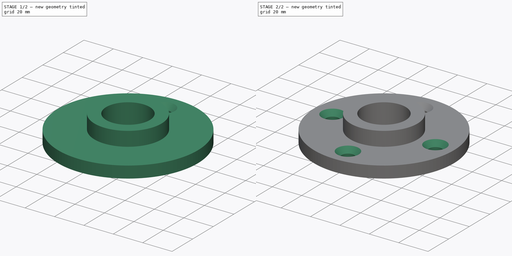
[diagram: build sequence overview — one tinted view per stage of 2, left to right]
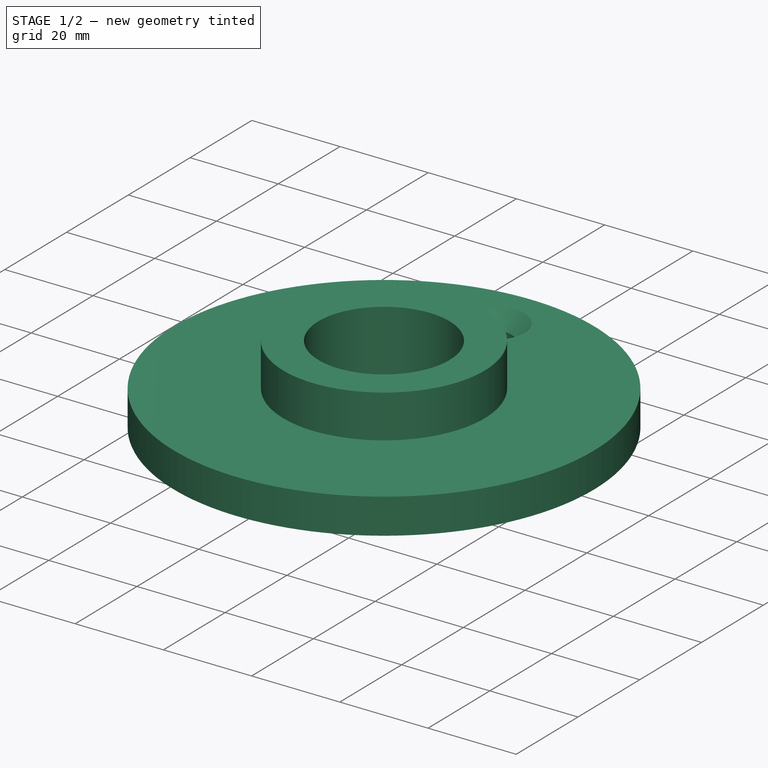
[diagram: stage 1 of 2 — iso view after this stage's code; geometry added in this stage tinted green]
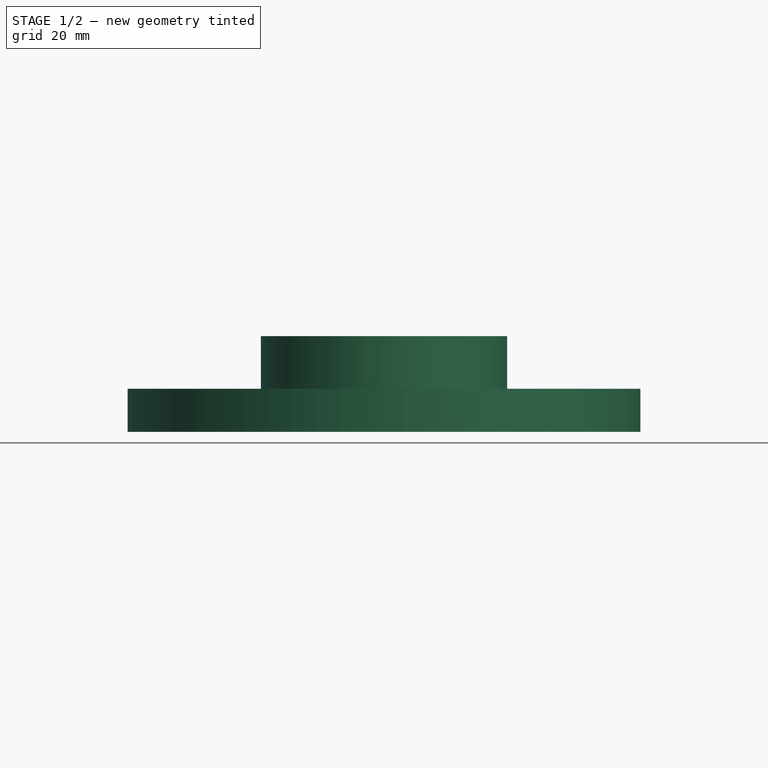
[diagram: stage 1 of 2 — front view after this stage's code; geometry added in this stage tinted green]
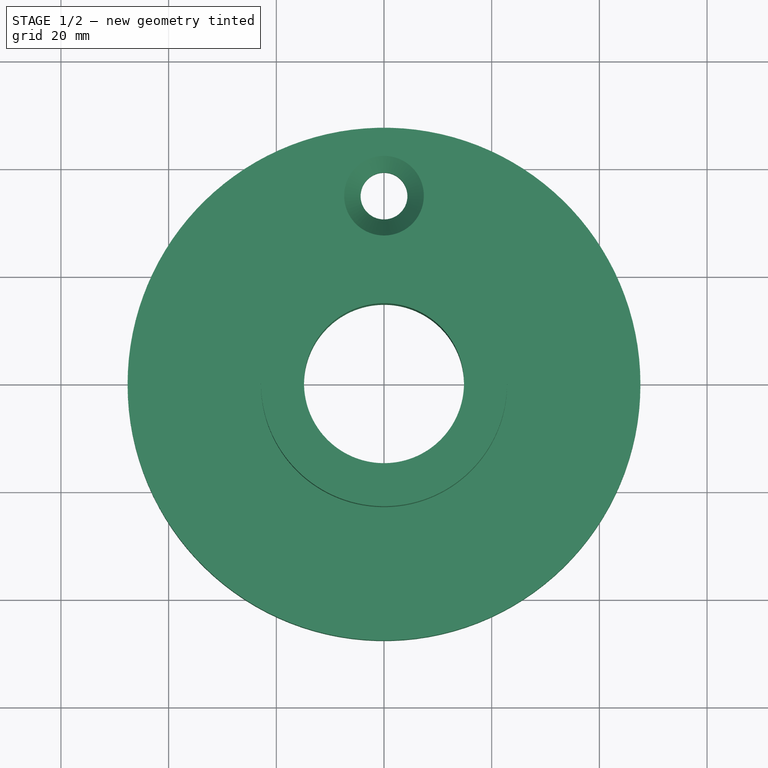
[diagram: stage 1 of 2 — top view after this stage's code; geometry added in this stage tinted green]
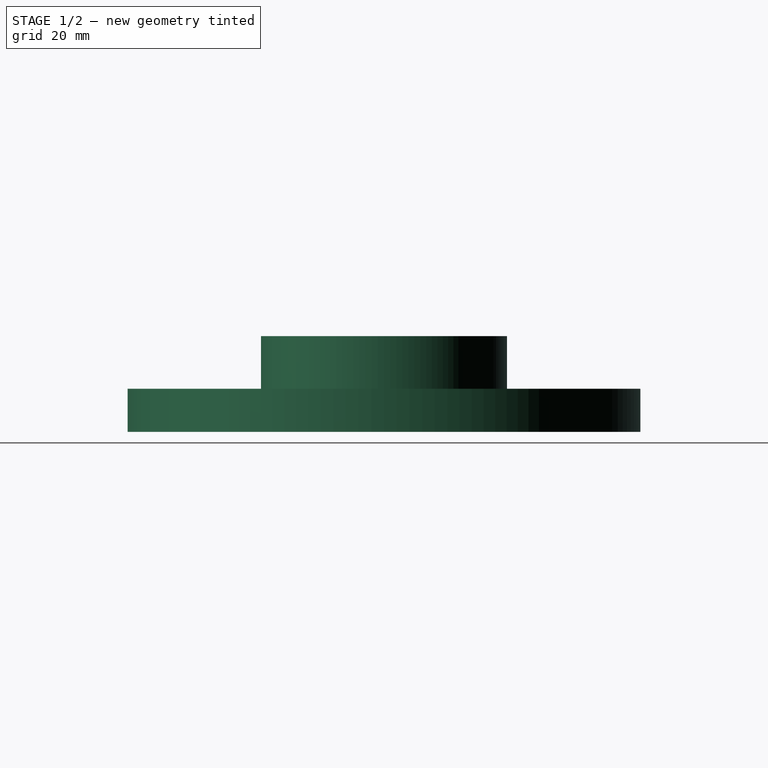
[diagram: stage 1 of 2 — right view after this stage's code; geometry added in this stage tinted green]
FCSTD DOCUMENT  (FreeCAD 0.20R29177 +426 (Git))
Label: PipeFloorFlange
License: All rights reserved
LicenseURL: http://en.wikipedia.org/wiki/All_rights_reserved
objects: Sketcher::SketchObject×2, PartDesign::Revolution×1, PartDesign::Hole×1, PartDesign::PolarPattern×1, PartDesign::CoordinateSystem×1, PartDesign::Body×1
note: 9 computed .brp shape members not serialized (recipe doc carries the construction recipe); baked Part::Feature solids carry a one-line shape summary decoded from their .brp

FEATURE [Sketcher::SketchObject] Sketch
  FullyConstrained = true
  MapMode = 5
  Placement = pos=(0,0,0) rot=(1,0,0;1.5708rad)
  Support = -> [XZ_Plane]
  sketch-geometry (6):
    g0: LineSegment StartX=14.86 StartY=0 StartZ=0 EndX=47.625 EndY=0 EndZ=0
    g1: LineSegment StartX=47.625 StartY=0 StartZ=0 EndX=47.625 EndY=8 EndZ=0
    g2: LineSegment StartX=47.625 StartY=8 StartZ=0 EndX=22.86 EndY=8 EndZ=0
    g3: LineSegment StartX=22.86 StartY=8 StartZ=0 EndX=22.86 EndY=17.78 EndZ=0
    g4: LineSegment StartX=22.86 StartY=17.78 StartZ=0 EndX=14.86 EndY=17.78 EndZ=0
    g5: LineSegment StartX=14.86 StartY=17.78 StartZ=0 EndX=14.86 EndY=0 EndZ=0
  constraints (18):
    c: PointOnObject(g0,g-1)
    c: Horizontal(g0)
    c: Coincident(g1,g0)
    c: Coincident(g2,g1)
    c: Horizontal(g2)
    c: Coincident(g3,g2)
    c: Vertical(g3)
    c: Coincident(g4,g3)
    c: Horizontal(g4)
    c: Vertical(g5)
    c: Coincident(g5,g4)
    c: Coincident(g5,g0)
    c: Vertical(g1)
    c: DistanceX(g-1,g3) = 22.86
    c: DistanceY(g1,g1) = 8  'Thickness'
    c: DistanceY(g5,g5) = 17.78
    c: DistanceX(g-1,g0) = 47.625
    c: DistanceX(g4,g4) = 8
FEATURE [PartDesign::Revolution] Revolution
  Angle = 360
  Axis = (0,-2e-16,1)
  Base = (0,0,0)
  Placement = pos=(0,0,0) rot=(1,0,0;1.5708rad)
  Profile = -> Sketch
  ReferenceAxis = -> Sketch [V_Axis]
  Reversed = true
FEATURE [Sketcher::SketchObject] Sketch001
  AttachmentOffset = pos=(0,0,8) rot=(0,0,1;0rad)
  FullyConstrained = true
  MapMode = 5
  Placement = pos=(0,0,8) rot=(0,0,1;0rad)
  Support = -> [XY_Plane]
  expr: .AttachmentOffset.Base.z = <<Sketch>>.Constraints.Thickness
  sketch-geometry (1):
    g0: Circle CenterX=0 CenterY=35 CenterZ=0 NormalX=0 NormalY=0 NormalZ=1 AngleXU=0 Radius=3
  constraints (3):
    c: PointOnObject(g0,g-2)
    c: DistanceY(g-1,g0) = 35
    c: Diameter(g0) = 6
FEATURE [PartDesign::Hole] Hole
  BaseFeature = -> Revolution
  CustomThreadClearance = 0
  Depth = 25
  DepthType = 0
  Diameter = 8.7
  DrillForDepth = false
  DrillPoint = 1
  DrillPointAngle = 118
  HoleCutCountersinkAngle = 82
  HoleCutCustomValues = false
  HoleCutDepth = 0
  HoleCutDiameter = 14.79
  HoleCutType = 2
  ModelThread = false
  Placement = pos=(0,0,0) rot=(1,0,0;1.5708rad)
  Profile = -> Sketch001
  Tapered = false
  TaperedAngle = 90
  ThreadClass = 0
  ThreadDepth = 25
  ThreadDepthType = 0
  ThreadDirection = 0
  ThreadFit = 0
  ThreadSize = 10
  ThreadType = 3
  Threaded = false
  UseCustomThreadClearance = false
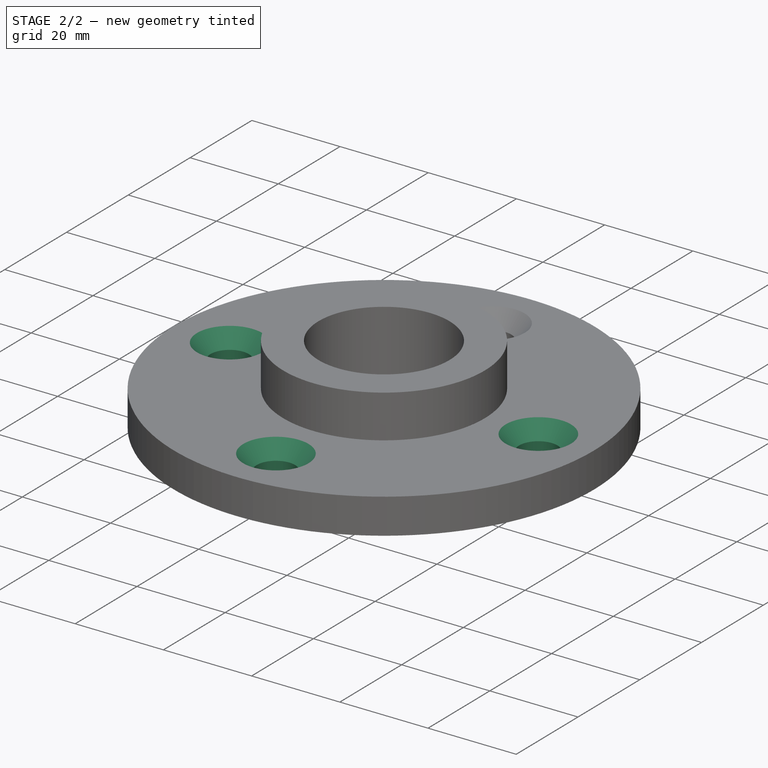
[diagram: stage 2 of 2 — iso view after this stage's code; geometry added in this stage tinted green]
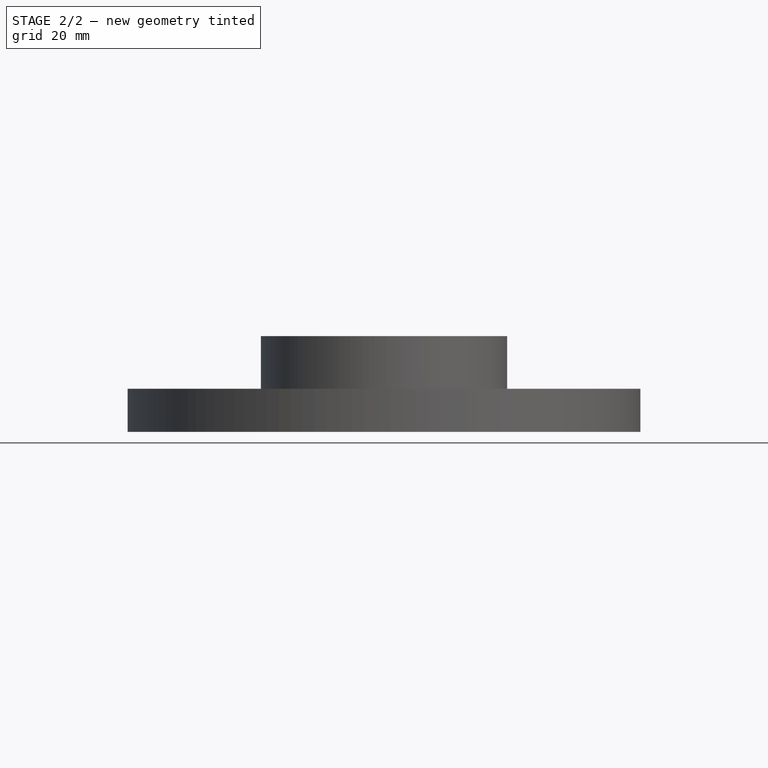
[diagram: stage 2 of 2 — front view after this stage's code; geometry added in this stage tinted green]
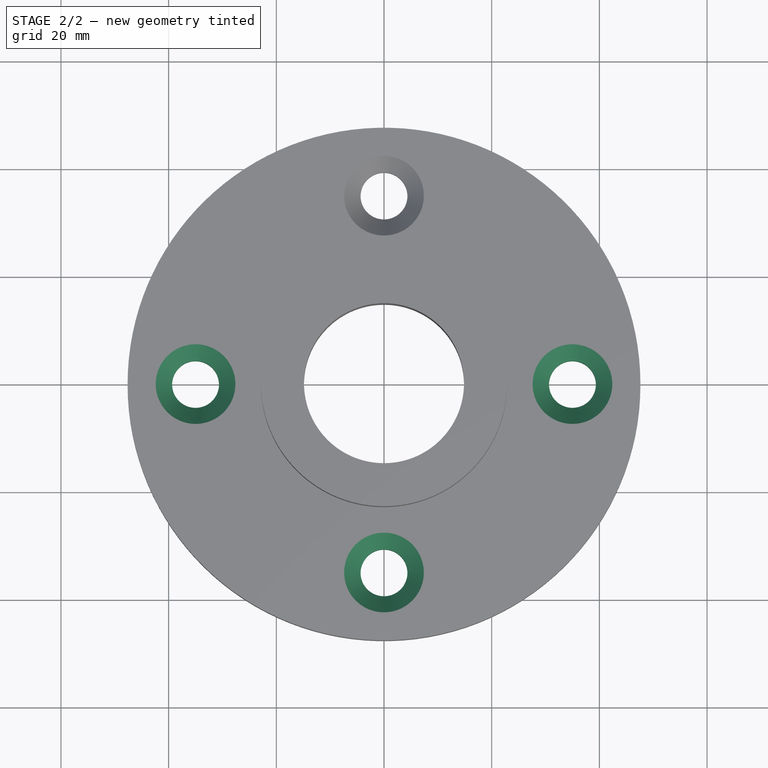
[diagram: stage 2 of 2 — top view after this stage's code; geometry added in this stage tinted green]
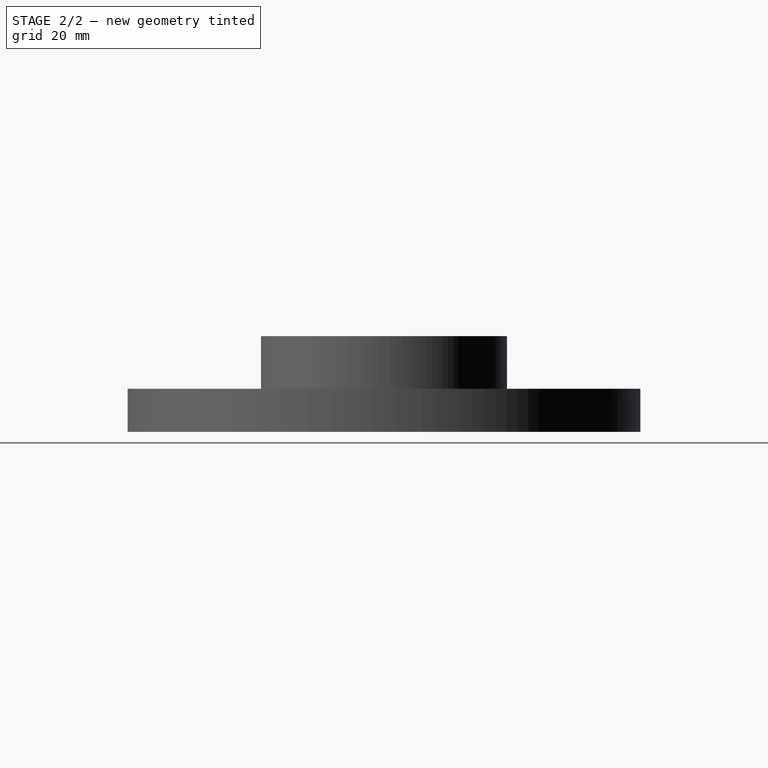
[diagram: stage 2 of 2 — right view after this stage's code; geometry added in this stage tinted green]
FEATURE [PartDesign::PolarPattern] PolarPattern
  Angle = 360
  Axis = -> Sketch001 [N_Axis]
  BaseFeature = -> Hole
  Occurrences = 4
  Originals = -> [Hole]
  Placement = pos=(0,0,0) rot=(1,0,0;1.5708rad)
FEATURE [PartDesign::CoordinateSystem] LCS_1
  AttacherType = Attacher::AttachEngine3D
  MapMode = 2
  Support = -> [XY_Plane]
FEATURE [PartDesign::Body] Body
  Group = -> [Sketch,Revolution,Sketch001,Hole,PolarPattern,LCS_1]
  Origin = -> Origin
  Tip = -> PolarPattern
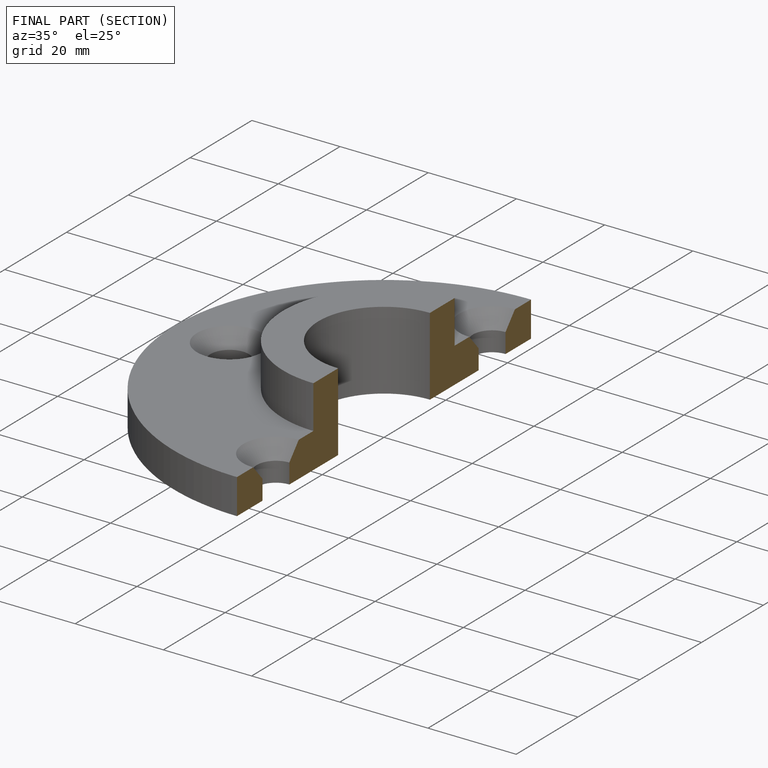
[diagram: finished part — half-section view (interior)]
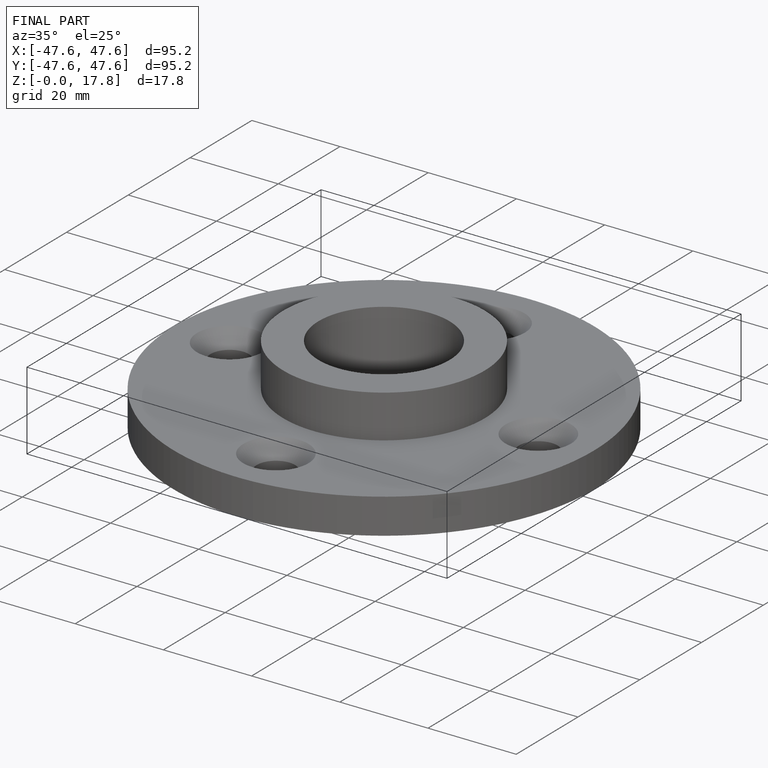
[diagram: finished part — iso view with bounding-box wireframe]
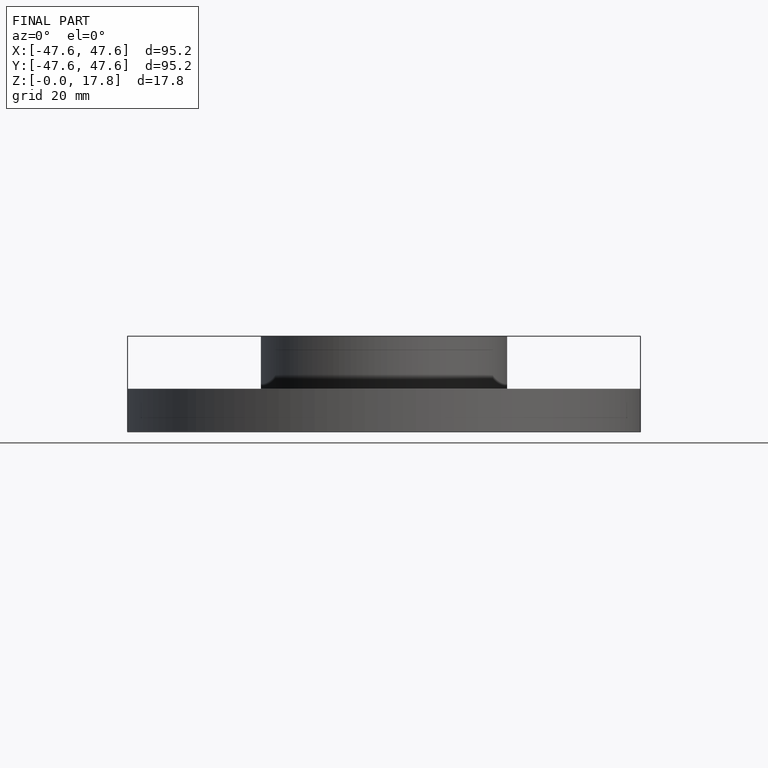
[diagram: finished part — front view with bounding-box wireframe]
